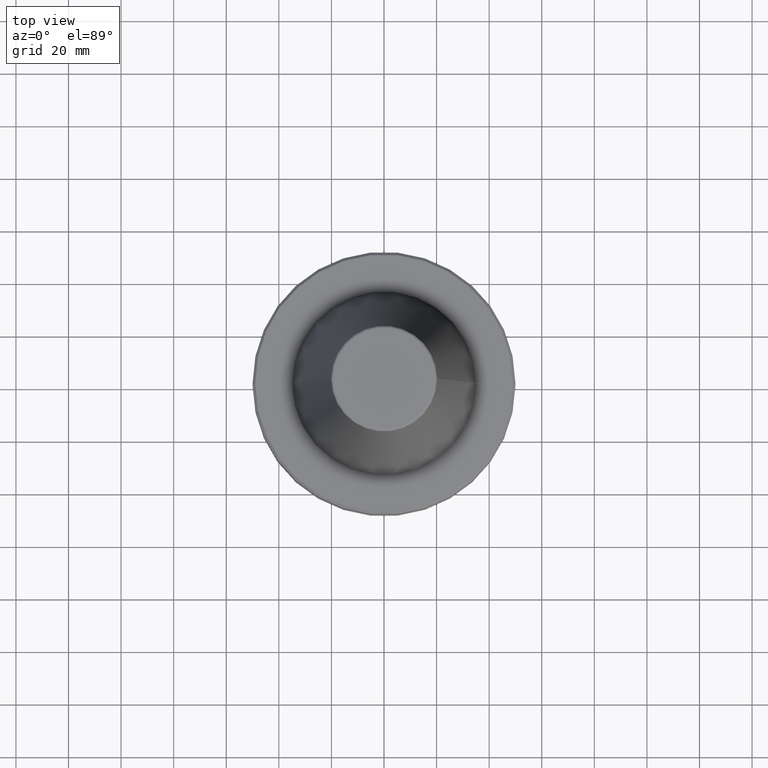
[diagram: clean part render]
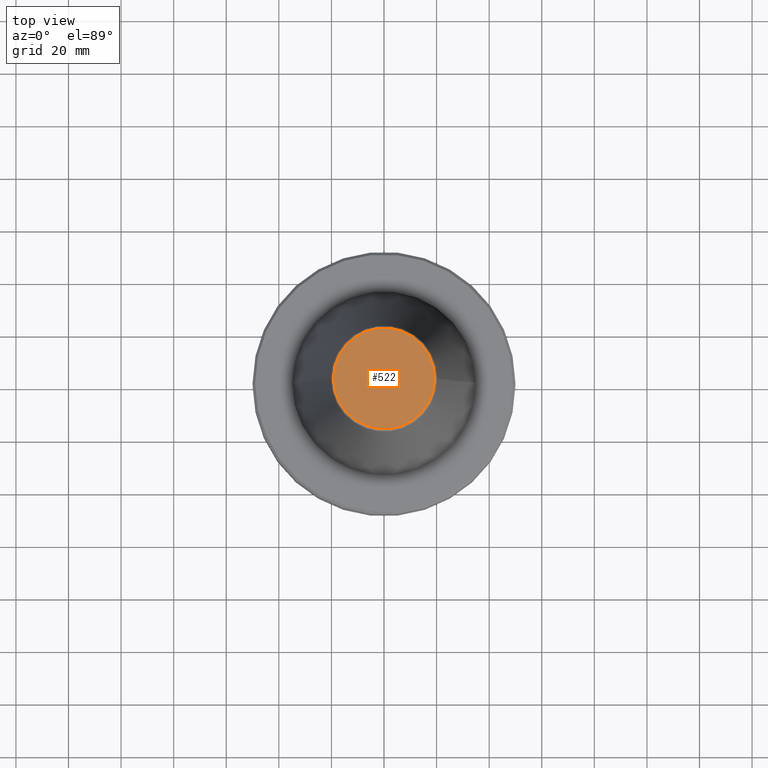
[diagram: same view with one face highlighted and labeled with its STEP entity id]
A machine part, top view. The second image highlights one B-rep face of the part: STEP entity #522.
In plain terms, the highlighted planar face has unit normal (0, 0, -1).
Its self-contained STEP definition (entity closure, byte-faithful):
#23 = PLANE ( 'NONE',  #671 ) ;
#97 = DIRECTION ( 'NONE',  ( 0.0000000000000000000, 0.0000000000000000000, -1.000000000000000000 ) ) ;
#104 = DIRECTION ( 'NONE',  ( -0.0000000000000000000, -0.0000000000000000000, 1.000000000000000000 ) ) ;
#163 = CARTESIAN_POINT ( 'NONE',  ( -19.21428326503027200, 2.413662457824437800E-015, 101.7999999999999800 ) ) ;
#166 = AXIS2_PLACEMENT_3D ( 'NONE', #375, #736, #948 ) ;
#167 = VERTEX_POINT ( 'NONE', #163 ) ;
#181 = CARTESIAN_POINT ( 'NONE',  ( 0.0000000000000000000, 0.0000000000000000000, 101.8000000000000000 ) ) ;
#183 = CIRCLE ( 'NONE', #185, 19.21428326503027200 ) ;
#185 = AXIS2_PLACEMENT_3D ( 'NONE', #701, #104, #727 ) ;
#197 = DIRECTION ( 'NONE',  ( -1.000000000000000000, 0.0000000000000000000, -0.0000000000000000000 ) ) ;
#253 = CIRCLE ( 'NONE', #166, 19.21428326503027200 ) ;
#321 = EDGE_LOOP ( 'NONE', ( #449, #548 ) ) ;
#337 = EDGE_CURVE ( 'NONE', #167, #741, #253, .T. ) ;
#368 = EDGE_CURVE ( 'NONE', #741, #167, #183, .T. ) ;
#375 = CARTESIAN_POINT ( 'NONE',  ( 0.0000000000000000000, 0.0000000000000000000, 101.7999999999999800 ) ) ;
#380 = CARTESIAN_POINT ( 'NONE',  ( 19.21428326503027200, 0.0000000000000000000, 101.7999999999999800 ) ) ;
#405 = FACE_OUTER_BOUND ( 'NONE', #321, .T. ) ;
#449 = ORIENTED_EDGE ( 'NONE', *, *, #368, .T. ) ;
#522 = ADVANCED_FACE ( 'NONE', ( #405 ), #23, .F. ) ;
#548 = ORIENTED_EDGE ( 'NONE', *, *, #337, .T. ) ;
#671 = AXIS2_PLACEMENT_3D ( 'NONE', #181, #97, #197 ) ;
#701 = CARTESIAN_POINT ( 'NONE',  ( 0.0000000000000000000, 0.0000000000000000000, 101.7999999999999800 ) ) ;
#727 = DIRECTION ( 'NONE',  ( 1.000000000000000000, 0.0000000000000000000, 0.0000000000000000000 ) ) ;
#736 = DIRECTION ( 'NONE',  ( -0.0000000000000000000, -0.0000000000000000000, 1.000000000000000000 ) ) ;
#741 = VERTEX_POINT ( 'NONE', #380 ) ;
#948 = DIRECTION ( 'NONE',  ( 1.000000000000000000, 0.0000000000000000000, 0.0000000000000000000 ) ) ;